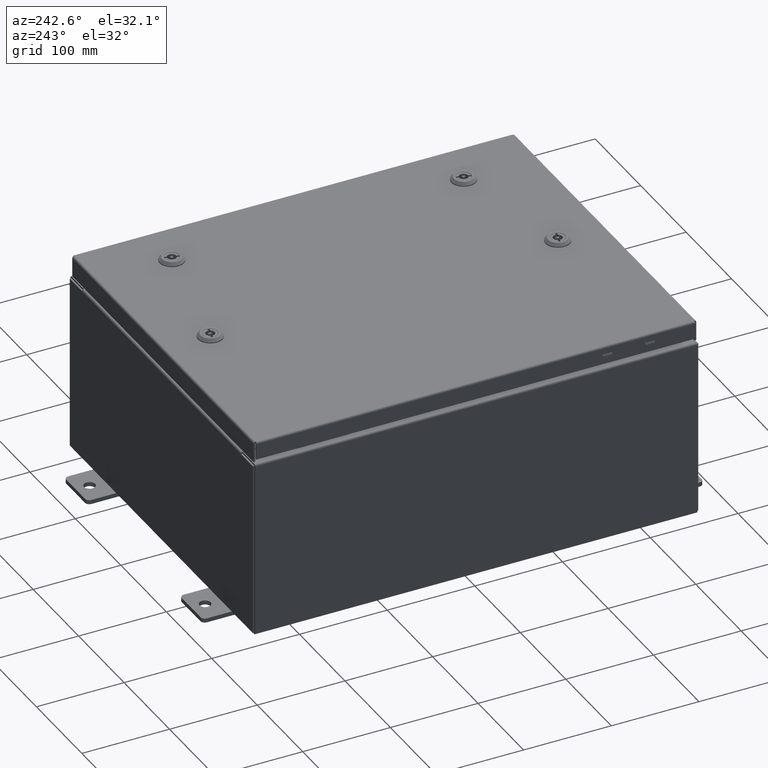
[diagram: clean part render]
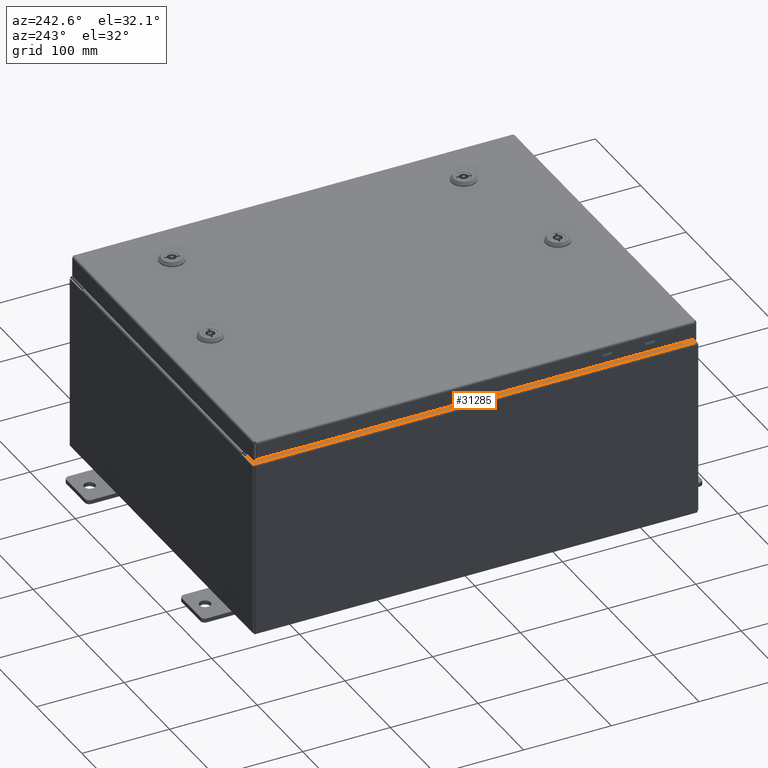
[diagram: same view with one face highlighted and labeled with its STEP entity id]
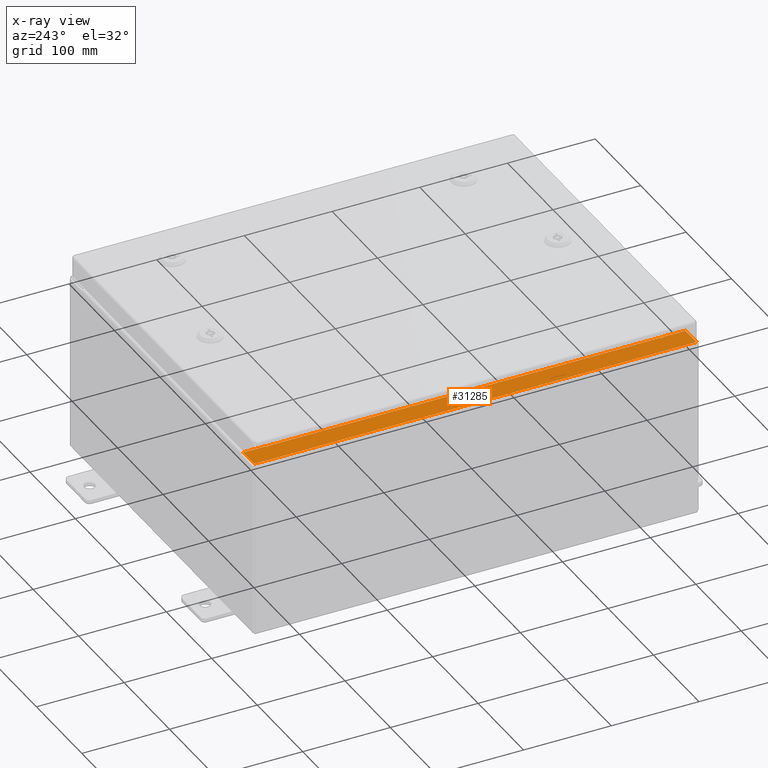
[diagram: x-ray of the same camera — body ghosted, the highlighted face saturated]
A machine part, auxiliary view. The second image highlights one B-rep face of the part: STEP entity #31285.
The next image is the same camera in x-ray: the body ghosted, the highlighted face saturated — about 0% of this face is hidden behind the body in this view.
In plain terms, the highlighted planar face has unit normal (0, 0, -1).
Its self-contained STEP definition (entity closure, byte-faithful):
#1143 = EDGE_CURVE ( 'NONE', #10999, #44662, #20210, .T. ) ;
#1185 = CARTESIAN_POINT ( 'NONE',  ( -5.352210493322565900E-014, 9.925299999999998200, 7.925300000000053300 ) ) ;
#1340 = ORIENTED_EDGE ( 'NONE', *, *, #17929, .F. ) ;
#1826 = CARTESIAN_POINT ( 'NONE',  ( -6.949700000000024900, -9.925299999999996500, 7.925300000000006200 ) ) ;
#2894 = CARTESIAN_POINT ( 'NONE',  ( -7.000050000000025600, -8.881099999999996400, 7.925300000000006200 ) ) ;
#3887 = VERTEX_POINT ( 'NONE', #45226 ) ;
#4116 = AXIS2_PLACEMENT_3D ( 'NONE', #52035, #22926, #56921 ) ;
#4364 = CIRCLE ( 'NONE', #9892, 0.01867500000000058700 ) ;
#4580 = VECTOR ( 'NONE', #8177, 39.37007874015748100 ) ;
#4622 = LINE ( 'NONE', #33025, #54841 ) ;
#5885 = VECTOR ( 'NONE', #42479, 39.37007874015748100 ) ;
#7179 = LINE ( 'NONE', #2894, #20184 ) ;
#7203 = VECTOR ( 'NONE', #53763, 39.37007874015748100 ) ;
#8177 = DIRECTION ( 'NONE',  ( -1.000000000000000000, -2.170286390199955400E-014, 0.0000000000000000000 ) ) ;
#8971 = VECTOR ( 'NONE', #61949, 39.37007874015748100 ) ;
#9393 = VECTOR ( 'NONE', #35275, 39.37007874015748100 ) ;
#9747 = CARTESIAN_POINT ( 'NONE',  ( -6.949700000000024900, 0.0000000000000000000, 7.925300000000006200 ) ) ;
#9758 = CARTESIAN_POINT ( 'NONE',  ( -7.912300000000025000, -9.925299999999996500, 7.925300000000000000 ) ) ;
#9892 = AXIS2_PLACEMENT_3D ( 'NONE', #10727, #44802, #15631 ) ;
#10463 = EDGE_CURVE ( 'NONE', #28267, #52947, #4364, .T. ) ;
#10727 = CARTESIAN_POINT ( 'NONE',  ( -7.000050000000025600, 8.862424999999996400, 7.925300000000006200 ) ) ;
#10799 = PLANE ( 'NONE',  #24005 ) ;
#10848 = CARTESIAN_POINT ( 'NONE',  ( -7.000050000000025600, 8.843749999999996400, 7.925300000000006200 ) ) ;
#10999 = VERTEX_POINT ( 'NONE', #1826 ) ;
#11820 = LINE ( 'NONE', #10848, #23280 ) ;
#11942 = EDGE_CURVE ( 'NONE', #39398, #32958, #17332, .T. ) ;
#13387 = CARTESIAN_POINT ( 'NONE',  ( -7.000050000000025600, -8.843749999999996400, 7.925300000000006200 ) ) ;
#15631 = DIRECTION ( 'NONE',  ( 1.000000000000000000, 0.0000000000000000000, 0.0000000000000000000 ) ) ;
#15707 = DIRECTION ( 'NONE',  ( -1.000000000000000000, 0.0000000000000000000, -6.720413268546771600E-015 ) ) ;
#15759 = DIRECTION ( 'NONE',  ( 1.000000000000000000, 0.0000000000000000000, 0.0000000000000000000 ) ) ;
#16537 = EDGE_CURVE ( 'NONE', #41790, #10999, #53575, .T. ) ;
#16883 = CARTESIAN_POINT ( 'NONE',  ( -7.912300000000025000, 9.925299999999998200, 7.925300000000000000 ) ) ;
#17251 = CARTESIAN_POINT ( 'NONE',  ( -7.000050000000025600, 8.881099999999996400, 7.925300000000006200 ) ) ;
#17306 = CARTESIAN_POINT ( 'NONE',  ( -6.949700000000024900, 8.881099999999998200, 7.925300000000006200 ) ) ;
#17332 = LINE ( 'NONE', #61308, #5885 ) ;
#17540 = LINE ( 'NONE', #52134, #8971 ) ;
#17737 = CARTESIAN_POINT ( 'NONE',  ( -6.949700000000024900, 9.925299999999998200, 7.925300000000006200 ) ) ;
#17929 = EDGE_CURVE ( 'NONE', #41790, #31438, #55746, .T. ) ;
#18556 = ORIENTED_EDGE ( 'NONE', *, *, #34166, .T. ) ;
#20055 = VECTOR ( 'NONE', #21584, 39.37007874015748100 ) ;
#20184 = VECTOR ( 'NONE', #27396, 39.37007874015748100 ) ;
#20210 = LINE ( 'NONE', #9747, #7203 ) ;
#20439 = CARTESIAN_POINT ( 'NONE',  ( -5.352210493322565900E-014, 0.0000000000000000000, 7.925300000000053300 ) ) ;
#21160 = EDGE_CURVE ( 'NONE', #57784, #28267, #41860, .T. ) ;
#21584 = DIRECTION ( 'NONE',  ( -0.0000000000000000000, 1.000000000000000000, -0.0000000000000000000 ) ) ;
#22138 = EDGE_CURVE ( 'NONE', #32958, #45905, #28913, .T. ) ;
#22490 = CARTESIAN_POINT ( 'NONE',  ( -6.962700000000025600, -8.843749999999996400, 7.925300000000006200 ) ) ;
#22926 = DIRECTION ( 'NONE',  ( -6.720413268546770800E-015, -0.0000000000000000000, 1.000000000000000000 ) ) ;
#23280 = VECTOR ( 'NONE', #15759, 39.37007874015748100 ) ;
#23801 = FACE_OUTER_BOUND ( 'NONE', #46491, .T. ) ;
#24005 = AXIS2_PLACEMENT_3D ( 'NONE', #20439, #44881, #15707 ) ;
#24744 = ORIENTED_EDGE ( 'NONE', *, *, #22138, .F. ) ;
#24851 = ORIENTED_EDGE ( 'NONE', *, *, #16537, .T. ) ;
#25268 = ORIENTED_EDGE ( 'NONE', *, *, #10463, .F. ) ;
#26119 = CARTESIAN_POINT ( 'NONE',  ( -7.912300000000025000, 9.925299999999998200, 7.925300000000000000 ) ) ;
#26127 = CARTESIAN_POINT ( 'NONE',  ( -6.949700000000024900, -8.881099999999996400, 7.925300000000006200 ) ) ;
#26685 = EDGE_CURVE ( 'NONE', #52947, #3887, #11820, .T. ) ;
#27396 = DIRECTION ( 'NONE',  ( 1.000000000000000000, -2.170286390199955400E-014, 0.0000000000000000000 ) ) ;
#27702 = VECTOR ( 'NONE', #34132, 39.37007874015748100 ) ;
#28004 = ORIENTED_EDGE ( 'NONE', *, *, #26685, .F. ) ;
#28267 = VERTEX_POINT ( 'NONE', #17251 ) ;
#28913 = CIRCLE ( 'NONE', #4116, 0.01867500000000058700 ) ;
#29239 = CARTESIAN_POINT ( 'NONE',  ( -3.128806566178994100E-014, -9.925299999999982200, 7.925300000000053300 ) ) ;
#29824 = ORIENTED_EDGE ( 'NONE', *, *, #37323, .T. ) ;
#31285 = ADVANCED_FACE ( 'NONE', ( #23801 ), #10799, .F. ) ;
#31438 = VERTEX_POINT ( 'NONE', #26119 ) ;
#32457 = CARTESIAN_POINT ( 'NONE',  ( -6.949700000000024900, 8.881099999999998200, 7.925300000000006200 ) ) ;
#32901 = ORIENTED_EDGE ( 'NONE', *, *, #1143, .T. ) ;
#32958 = VERTEX_POINT ( 'NONE', #13387 ) ;
#33025 = CARTESIAN_POINT ( 'NONE',  ( -6.949700000000024900, 0.0000000000000000000, 7.925300000000006200 ) ) ;
#33699 = ORIENTED_EDGE ( 'NONE', *, *, #58919, .F. ) ;
#34132 = DIRECTION ( 'NONE',  ( 1.000000000000000000, 2.240137756182257300E-015, 6.720413268546771600E-015 ) ) ;
#34166 = EDGE_CURVE ( 'NONE', #47179, #31438, #59611, .T. ) ;
#35275 = DIRECTION ( 'NONE',  ( -1.000000000000000000, 0.0000000000000000000, -6.720413268546771600E-015 ) ) ;
#36460 = ORIENTED_EDGE ( 'NONE', *, *, #21160, .F. ) ;
#37323 = EDGE_CURVE ( 'NONE', #57784, #47179, #4622, .T. ) ;
#39398 = VERTEX_POINT ( 'NONE', #22490 ) ;
#39399 = ORIENTED_EDGE ( 'NONE', *, *, #44901, .F. ) ;
#39564 = ORIENTED_EDGE ( 'NONE', *, *, #11942, .F. ) ;
#41790 = VERTEX_POINT ( 'NONE', #9758 ) ;
#41860 = LINE ( 'NONE', #32457, #4580 ) ;
#42479 = DIRECTION ( 'NONE',  ( -1.000000000000000000, 0.0000000000000000000, 0.0000000000000000000 ) ) ;
#44662 = VERTEX_POINT ( 'NONE', #26127 ) ;
#44802 = DIRECTION ( 'NONE',  ( -6.720413268546770800E-015, -0.0000000000000000000, 1.000000000000000000 ) ) ;
#44881 = DIRECTION ( 'NONE',  ( 6.720413268546771600E-015, 0.0000000000000000000, -1.000000000000000000 ) ) ;
#44901 = EDGE_CURVE ( 'NONE', #45905, #44662, #7179, .T. ) ;
#45226 = CARTESIAN_POINT ( 'NONE',  ( -6.962700000000025600, 8.843749999999996400, 7.925300000000006200 ) ) ;
#45905 = VERTEX_POINT ( 'NONE', #53090 ) ;
#46491 = EDGE_LOOP ( 'NONE', ( #36460, #29824, #18556, #1340, #24851, #32901, #39399, #24744, #39564, #33699, #28004, #25268 ) ) ;
#47179 = VERTEX_POINT ( 'NONE', #17737 ) ;
#47555 = CARTESIAN_POINT ( 'NONE',  ( -7.000050000000025600, 8.843749999999996400, 7.925300000000006200 ) ) ;
#52035 = CARTESIAN_POINT ( 'NONE',  ( -7.000050000000025600, -8.862424999999994700, 7.925300000000006200 ) ) ;
#52134 = CARTESIAN_POINT ( 'NONE',  ( -6.962700000000025600, 8.843749999999998200, 7.925300000000006200 ) ) ;
#52947 = VERTEX_POINT ( 'NONE', #47555 ) ;
#53090 = CARTESIAN_POINT ( 'NONE',  ( -7.000050000000025600, -8.881099999999996400, 7.925300000000006200 ) ) ;
#53575 = LINE ( 'NONE', #29239, #27702 ) ;
#53763 = DIRECTION ( 'NONE',  ( 0.0000000000000000000, 1.000000000000000000, 0.0000000000000000000 ) ) ;
#54841 = VECTOR ( 'NONE', #62170, 39.37007874015748100 ) ;
#55746 = LINE ( 'NONE', #16883, #20055 ) ;
#56921 = DIRECTION ( 'NONE',  ( 1.000000000000000000, 0.0000000000000000000, 0.0000000000000000000 ) ) ;
#57784 = VERTEX_POINT ( 'NONE', #17306 ) ;
#58919 = EDGE_CURVE ( 'NONE', #3887, #39398, #17540, .T. ) ;
#59611 = LINE ( 'NONE', #1185, #9393 ) ;
#61308 = CARTESIAN_POINT ( 'NONE',  ( -6.962700000000025600, -8.843749999999996400, 7.925300000000006200 ) ) ;
#61949 = DIRECTION ( 'NONE',  ( -0.0000000000000000000, -1.000000000000000000, -0.0000000000000000000 ) ) ;
#62170 = DIRECTION ( 'NONE',  ( 0.0000000000000000000, 1.000000000000000000, 0.0000000000000000000 ) ) ;